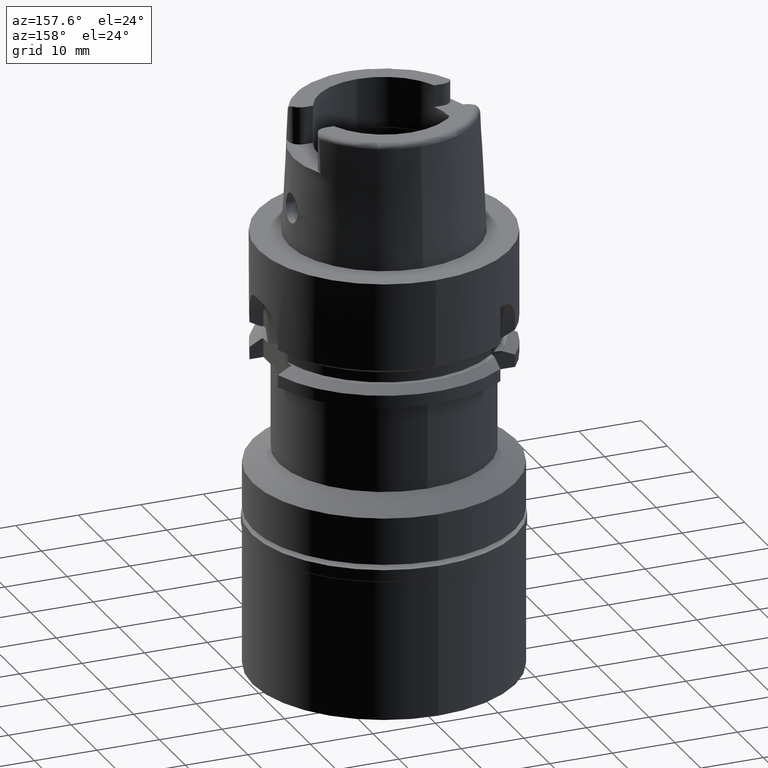
[diagram: clean part render]
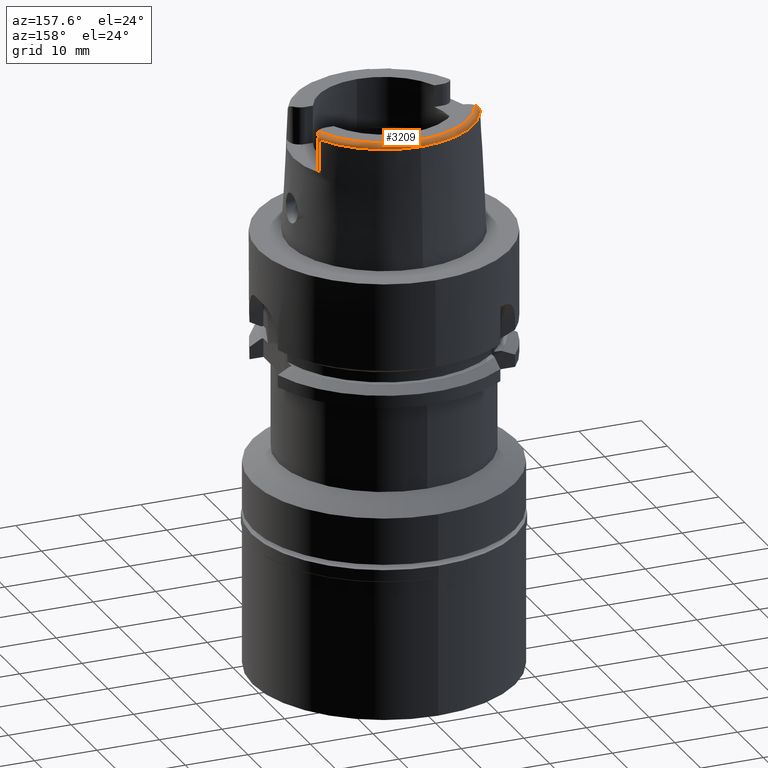
[diagram: same view with one face highlighted and labeled with its STEP entity id]
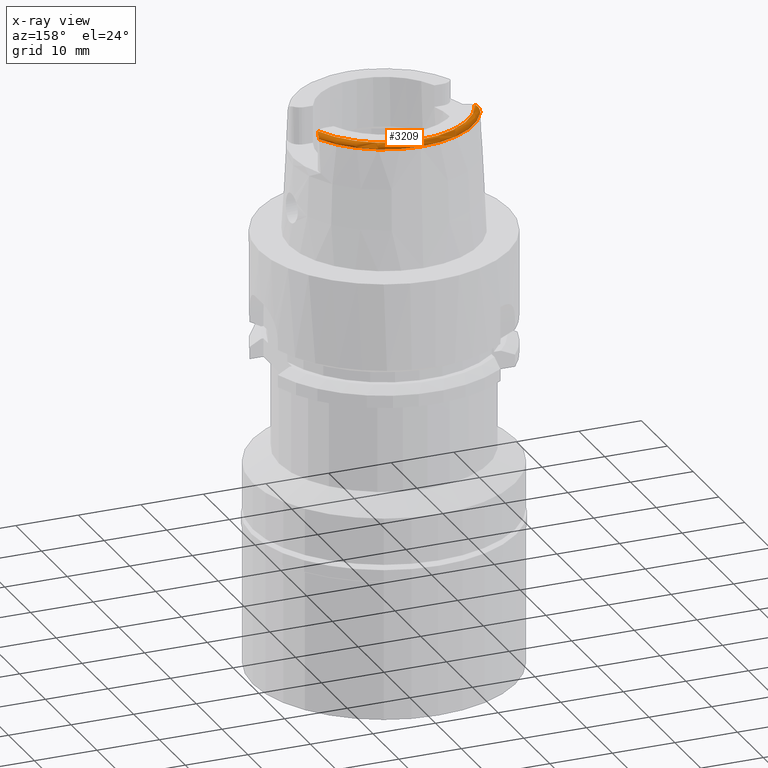
[diagram: x-ray of the same camera — body ghosted, the highlighted face saturated]
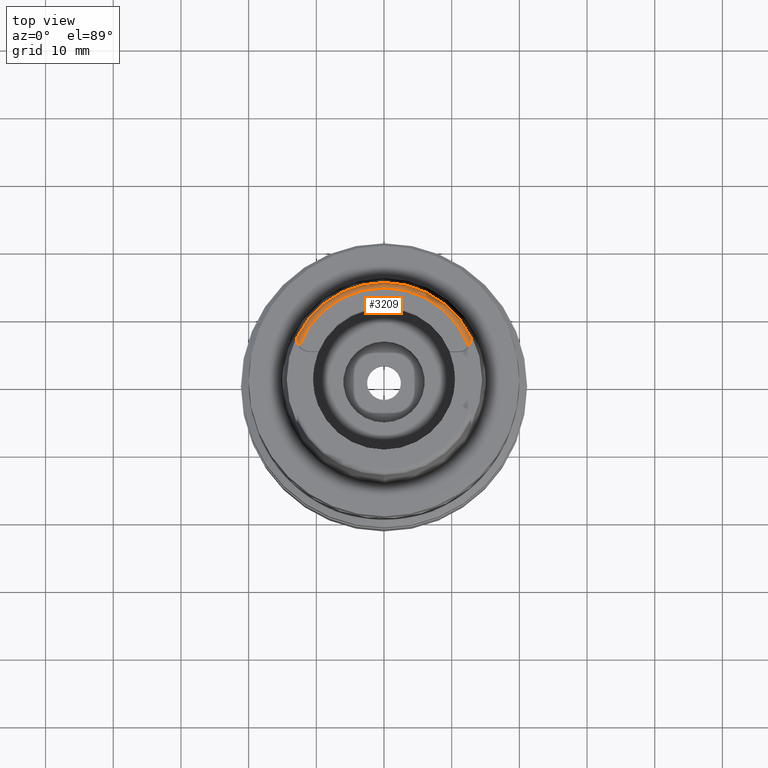
[diagram: same view with one face highlighted and labeled with its STEP entity id]
A machine part, auxiliary view. The second image highlights one B-rep face of the part: STEP entity #3209.
The next image is the same camera in x-ray: the body ghosted, the highlighted face saturated — about 0% of this face is hidden behind the body in this view.
A second angle (top view) of the same face is appended — the face is thin or edge-on in the first view.
In plain terms, the highlighted toroidal blend (fillet) surface has major radius 13.439 mm and minor (blend) radius 0.8 mm.
Its self-contained STEP definition (entity closure, byte-faithful):
#323 = CARTESIAN_POINT ( 'NONE',  ( -12.70905723211074090, 5.120176097525891201, 19.95690278570278053 ) ) ;
#372 = CARTESIAN_POINT ( 'NONE',  ( -12.87648993677918874, 5.755376891521557070, 19.65142079822724241 ) ) ;
#460 = AXIS2_PLACEMENT_3D ( 'NONE', #5036, #850, #3458 ) ;
#480 = FACE_OUTER_BOUND ( 'NONE', #4179, .T. ) ;
#535 = CARTESIAN_POINT ( 'NONE',  ( -12.88000000000000078, 5.904999999999999361, 19.52698079989999869 ) ) ;
#554 = CARTESIAN_POINT ( 'NONE',  ( -12.88000000000000078, 5.904999999999999361, 19.52698079989999869 ) ) ;
#566 = CARTESIAN_POINT ( 'NONE',  ( -12.87999878070000115, 6.065737903987999502, 19.26277266876999761 ) ) ;
#584 = CARTESIAN_POINT ( 'NONE',  ( 12.64801950738356240, 4.981384251615603276, 19.99999999999999289 ) ) ;
#638 = CARTESIAN_POINT ( 'NONE',  ( 12.73824158246768690, 5.159258340480116445, 19.95689965069589533 ) ) ;
#667 = CARTESIAN_POINT ( 'NONE',  ( 12.81382636912766770, 5.407873452713146456, 19.84914877743566564 ) ) ;
#726 = CARTESIAN_POINT ( 'NONE',  ( -12.54148453352999937, 4.828791175990000184, 20.00000000000000000 ) ) ;
#793 = CARTESIAN_POINT ( 'NONE',  ( -12.81434206239053708, 5.409567490002427981, 19.84841840884752884 ) ) ;
#806 = AXIS2_PLACEMENT_3D ( 'NONE', #5338, #1575, #3260 ) ;
#850 = DIRECTION ( 'NONE',  ( 0.0000000000000000000, 0.0000000000000000000, -1.000000000000000000 ) ) ;
#881 = CARTESIAN_POINT ( 'NONE',  ( 12.87421919896219080, 5.752108272777341824, 19.65102958779115028 ) ) ;
#903 = AXIS2_PLACEMENT_3D ( 'NONE', #2329, #3103, #3596 ) ;
#925 = CARTESIAN_POINT ( 'NONE',  ( 12.88000000000000078, 5.904999999999999361, 19.52698079989999869 ) ) ;
#976 = CARTESIAN_POINT ( 'NONE',  ( -12.88000056611000055, 6.055729387997000224, 19.30914970958999888 ) ) ;
#1025 = CARTESIAN_POINT ( 'NONE',  ( 0.0000000000000000000, 14.23797715755999782, 19.23995141520000018 ) ) ;
#1118 = B_SPLINE_CURVE_WITH_KNOTS ( 'NONE', 3,
 ( #535, #3915, #5166, #1405, #976, #566, #2265 ),
 .UNSPECIFIED., .F., .F.,
 ( 4, 1, 1, 1, 4 ),
 ( 0.0000000000000000000, 0.2500000000000000000, 0.5000000000000000000, 0.7500000000000000000, 1.000000000000000000 ),
 .UNSPECIFIED. ) ;
#1157 = CARTESIAN_POINT ( 'NONE',  ( -12.59474206296373566, 4.905073451399552198, 20.00000000000000355 ) ) ;
#1336 = ORIENTED_EDGE ( 'NONE', *, *, #2181, .F. ) ;
#1376 = CARTESIAN_POINT ( 'NONE',  ( 12.88000000000000078, 5.930766582126000053, 19.50300297360999835 ) ) ;
#1405 = CARTESIAN_POINT ( 'NONE',  ( -12.87999984758999972, 6.024558780317999407, 19.38143582494000228 ) ) ;
#1454 = AXIS2_PLACEMENT_3D ( 'NONE', #5079, #1765, #3793 ) ;
#1522 = CARTESIAN_POINT ( 'NONE',  ( 12.82746719143685610, 5.460676759444408113, 19.82396439326610249 ) ) ;
#1575 = DIRECTION ( 'NONE',  ( 0.0000000000000000000, 0.0000000000000000000, -1.000000000000000000 ) ) ;
#1579 = CARTESIAN_POINT ( 'NONE',  ( -12.78306378683953959, 5.306690695890933007, 19.89299830536916147 ) ) ;
#1600 = CARTESIAN_POINT ( 'NONE',  ( -12.72933773310050753, 5.165843424759719582, 19.94343490623490212 ) ) ;
#1609 = ORIENTED_EDGE ( 'NONE', *, *, #2461, .T. ) ;
#1666 = VERTEX_POINT ( 'NONE', #726 ) ;
#1752 = CARTESIAN_POINT ( 'NONE',  ( 12.85757451854614075, 5.611311591022789536, 19.74215076442284911 ) ) ;
#1765 = DIRECTION ( 'NONE',  ( 0.0000000000000000000, 0.0000000000000000000, -1.000000000000000000 ) ) ;
#1794 = CARTESIAN_POINT ( 'NONE',  ( 12.88000642478999858, 6.068395837171999929, 19.23995141520000018 ) ) ;
#1874 = VERTEX_POINT ( 'NONE', #4300 ) ;
#1967 = CARTESIAN_POINT ( 'NONE',  ( 12.54148453352999937, 4.828791175991000273, 20.00000000000000000 ) ) ;
#2001 = CARTESIAN_POINT ( 'NONE',  ( -12.64390906259709446, 4.987577678487135735, 19.98922569642569869 ) ) ;
#2172 = EDGE_CURVE ( 'NONE', #1874, #3479, #5057, .T. ) ;
#2181 = EDGE_CURVE ( 'NONE', #3892, #2714, #1118, .T. ) ;
#2265 = CARTESIAN_POINT ( 'NONE',  ( -12.87999878070000115, 6.068418773163000601, 19.23992100636999680 ) ) ;
#2329 = CARTESIAN_POINT ( 'NONE',  ( 0.0000000000000000000, 1.459778984583999657E-14, 19.23995141520000018 ) ) ;
#2338 = EDGE_CURVE ( 'NONE', #2714, #3802, #2851, .T. ) ;
#2461 = EDGE_CURVE ( 'NONE', #1666, #2853, #4355, .T. ) ;
#2489 = CARTESIAN_POINT ( 'NONE',  ( -12.84907073637507224, 5.561492151937333261, 19.77086037885641545 ) ) ;
#2573 = CARTESIAN_POINT ( 'NONE',  ( 12.87042549795545909, 5.709182661345916010, 19.68051029027834886 ) ) ;
#2590 = EDGE_CURVE ( 'NONE', #3802, #1874, #2676, .T. ) ;
#2666 = ORIENTED_EDGE ( 'NONE', *, *, #4598, .F. ) ;
#2676 = CIRCLE ( 'NONE', #903, 14.23797715755999782 ) ;
#2714 = VERTEX_POINT ( 'NONE', #3983 ) ;
#2851 = CIRCLE ( 'NONE', #806, 14.23797715756000670 ) ;
#2853 = VERTEX_POINT ( 'NONE', #1967 ) ;
#2856 = CARTESIAN_POINT ( 'NONE',  ( -12.82745539763388187, 5.460627409195733861, 19.82399082354497466 ) ) ;
#2906 = CARTESIAN_POINT ( 'NONE',  ( -12.76660118393136756, 5.259956052056589115, 19.91111199551198752 ) ) ;
#2971 = ORIENTED_EDGE ( 'NONE', *, *, #4415, .F. ) ;
#2989 = CARTESIAN_POINT ( 'NONE',  ( 12.88000000000000256, 5.871159828866078456, 19.55847173420227136 ) ) ;
#3103 = DIRECTION ( 'NONE',  ( 0.0000000000000000000, 0.0000000000000000000, -1.000000000000000000 ) ) ;
#3209 = ADVANCED_FACE ( 'NONE', ( #480 ), #4364, .T. ) ;
#3260 = DIRECTION ( 'NONE',  ( -0.9046226299953515904, 0.4262134410131772633, 0.0000000000000000000 ) ) ;
#3272 = ORIENTED_EDGE ( 'NONE', *, *, #2172, .F. ) ;
#3317 = B_SPLINE_CURVE_WITH_KNOTS ( 'NONE', 3,
 ( #4098, #1157, #2001, #323, #1600, #2906, #1579, #793, #2856, #2489, #4174, #372, #3906, #554 ),
 .UNSPECIFIED., .F., .F.,
 ( 4, 2, 2, 2, 2, 2, 4 ),
 ( 0.0000000000000000000, 0.2500000000000010547, 0.3750000000000015543, 0.5000000000000021094, 0.6250000000000026645, 0.7500000000000031086, 1.000000000000000000 ),
 .UNSPECIFIED. ) ;
#3436 = CARTESIAN_POINT ( 'NONE',  ( 12.84907714504667986, 5.561527745600955974, 19.77084158502039202 ) ) ;
#3458 = DIRECTION ( 'NONE',  ( 0.001485959642573941777, 0.9999988959613608230, 0.0000000000000000000 ) ) ;
#3479 = VERTEX_POINT ( 'NONE', #4303 ) ;
#3596 = DIRECTION ( 'NONE',  ( 0.0000000000000000000, 1.000000000000000000, 0.0000000000000000000 ) ) ;
#3793 = DIRECTION ( 'NONE',  ( -0.001485959642573941777, -0.9999988959613608230, 0.0000000000000000000 ) ) ;
#3802 = VERTEX_POINT ( 'NONE', #1025 ) ;
#3889 = CARTESIAN_POINT ( 'NONE',  ( 12.88000214159999857, 6.065727392597000112, 19.26272790650999767 ) ) ;
#3892 = VERTEX_POINT ( 'NONE', #4297 ) ;
#3906 = CARTESIAN_POINT ( 'NONE',  ( -12.87999999999999545, 5.837305986650017431, 19.58997539051301828 ) ) ;
#3915 = CARTESIAN_POINT ( 'NONE',  ( -12.88000000000000078, 5.930770061303999974, 19.50299973597000047 ) ) ;
#3983 = CARTESIAN_POINT ( 'NONE',  ( -12.87999878070000115, 6.068418773163000601, 19.23992100636999680 ) ) ;
#4022 = ORIENTED_EDGE ( 'NONE', *, *, #2590, .F. ) ;
#4098 = CARTESIAN_POINT ( 'NONE',  ( -12.54148453352999937, 4.828791175990000184, 20.00000000000000000 ) ) ;
#4174 = CARTESIAN_POINT ( 'NONE',  ( -12.85775923006171695, 5.612714125424127509, 19.74126513545040496 ) ) ;
#4179 = EDGE_LOOP ( 'NONE', ( #2971, #1609, #2666, #3272, #4022, #4841, #1336 ) ) ;
#4297 = CARTESIAN_POINT ( 'NONE',  ( -12.88000000000000078, 5.904999999999999361, 19.52698079989999869 ) ) ;
#4300 = CARTESIAN_POINT ( 'NONE',  ( 12.88000642478999858, 6.068395837171999929, 19.23995141520000018 ) ) ;
#4303 = CARTESIAN_POINT ( 'NONE',  ( 12.88000000000000078, 5.904999999999999361, 19.52698079989999869 ) ) ;
#4355 = CIRCLE ( 'NONE', #460, 13.43897535254000175 ) ;
#4364 = TOROIDAL_SURFACE ( 'NONE', #1454, 13.43897535253999997, 0.8000000000000000444 ) ;
#4374 = CARTESIAN_POINT ( 'NONE',  ( 12.54148453352999937, 4.828791175991000273, 20.00000000000000000 ) ) ;
#4415 = EDGE_CURVE ( 'NONE', #1666, #3892, #3317, .T. ) ;
#4598 = EDGE_CURVE ( 'NONE', #3479, #2853, #5088, .T. ) ;
#4662 = CARTESIAN_POINT ( 'NONE',  ( 12.87909582061842428, 5.833779336243140712, 19.58957967864095195 ) ) ;
#4705 = CARTESIAN_POINT ( 'NONE',  ( 12.87999992350999889, 5.975742254166999778, 19.45455645648999976 ) ) ;
#4841 = ORIENTED_EDGE ( 'NONE', *, *, #2338, .F. ) ;
#5036 = CARTESIAN_POINT ( 'NONE',  ( 0.0000000000000000000, 1.459778984583999657E-14, 20.00000000000000000 ) ) ;
#5057 = B_SPLINE_CURVE_WITH_KNOTS ( 'NONE', 3,
 ( #1794, #3889, #5108, #5138, #4705, #1376, #925 ),
 .UNSPECIFIED., .F., .F.,
 ( 4, 1, 1, 1, 4 ),
 ( 0.0000000000000000000, 0.2500000000000000000, 0.5000000000000000000, 0.7500000000000000000, 1.000000000000000000 ),
 .UNSPECIFIED. ) ;
#5067 = CARTESIAN_POINT ( 'NONE',  ( 12.88000000000000078, 5.904999999999999361, 19.52698079989999869 ) ) ;
#5079 = CARTESIAN_POINT ( 'NONE',  ( 0.0000000000000000000, 1.459778984583999657E-14, 19.19999999999999929 ) ) ;
#5088 = B_SPLINE_CURVE_WITH_KNOTS ( 'NONE', 3,
 ( #5067, #2989, #4662, #881, #2573, #1752, #3436, #1522, #667, #638, #584, #4374 ),
 .UNSPECIFIED., .F., .F.,
 ( 4, 2, 2, 2, 2, 4 ),
 ( 0.0000000000000000000, 0.1250000000000007216, 0.2500000000000014433, 0.3750000000000021649, 0.5000000000000028866, 1.000000000000000000 ),
 .UNSPECIFIED. ) ;
#5108 = CARTESIAN_POINT ( 'NONE',  ( 12.87999900568999934, 6.055735433050999816, 19.30916664616000133 ) ) ;
#5138 = CARTESIAN_POINT ( 'NONE',  ( 12.88000026769999984, 6.024557110403000237, 19.38143224828000299 ) ) ;
#5166 = CARTESIAN_POINT ( 'NONE',  ( -12.88000004355000172, 5.975748605401999924, 19.45454639116000095 ) ) ;
#5338 = CARTESIAN_POINT ( 'NONE',  ( 0.0000000000000000000, 1.459778984583999657E-14, 19.23995141520000018 ) ) ;